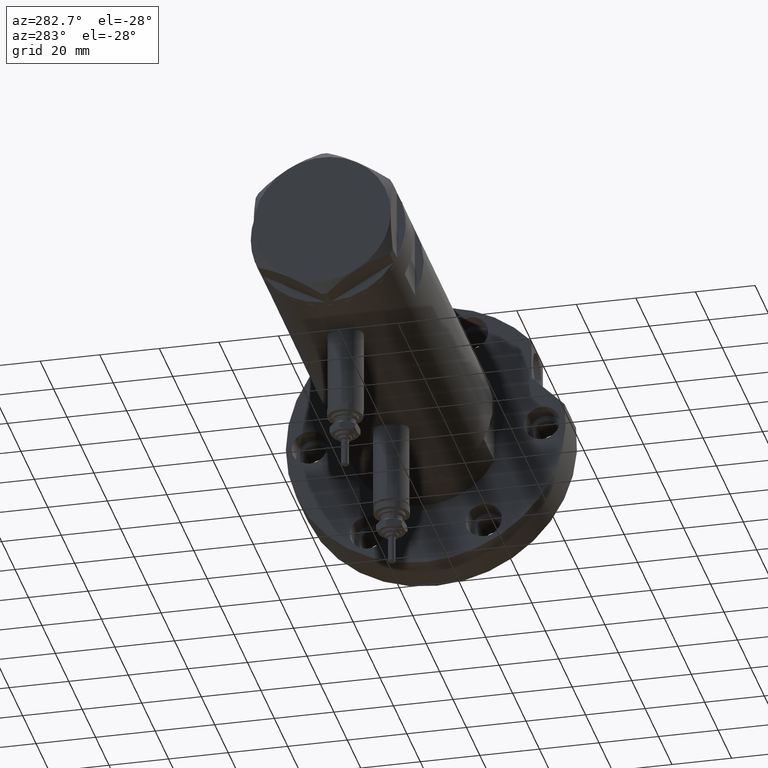
[diagram: clean part render]
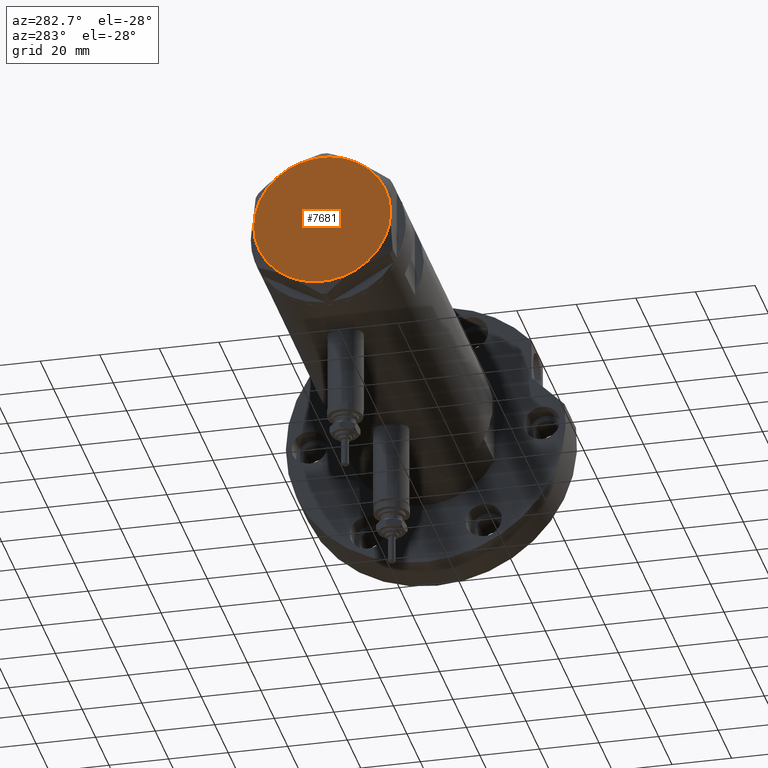
[diagram: same view with one face highlighted and labeled with its STEP entity id]
A machine part, auxiliary view. The second image highlights one B-rep face of the part: STEP entity #7681.
In plain terms, the highlighted planar face has unit normal (-1, -0, 0).
Its self-contained STEP definition (entity closure, byte-faithful):
#99 = PLANE ( 'NONE',  #2413 ) ;
#255 = DIRECTION ( 'NONE',  ( 0.000000000000000000, 0.000000000000000000, 1.000000000000000000 ) ) ;
#363 = ORIENTED_EDGE ( 'NONE', *, *, #4805, .T. ) ;
#397 = AXIS2_PLACEMENT_3D ( 'NONE', #408, #1809, #7106 ) ;
#408 = CARTESIAN_POINT ( 'NONE',  ( 0.000000000000000000, 0.000000000000000000, 9.000000000000000000 ) ) ;
#634 = CARTESIAN_POINT ( 'NONE',  ( 11.49999999999990408, 19.91858428704219364, 9.000000000000000000 ) ) ;
#673 = ORIENTED_EDGE ( 'NONE', *, *, #7452, .T. ) ;
#825 = CARTESIAN_POINT ( 'NONE',  ( 11.50000000000018296, -19.91858428704203732, 9.000000000000000000 ) ) ;
#984 = CIRCLE ( 'NONE', #7553, 23.00000000000004619 ) ;
#1064 = DIRECTION ( 'NONE',  ( 0.000000000000000000, 0.000000000000000000, 1.000000000000000000 ) ) ;
#1809 = DIRECTION ( 'NONE',  ( 0.000000000000000000, 0.000000000000000000, 1.000000000000000000 ) ) ;
#1866 = VERTEX_POINT ( 'NONE', #634 ) ;
#1915 = CARTESIAN_POINT ( 'NONE',  ( -11.50000000000004441, 19.91858428704211548, 9.000000000000000000 ) ) ;
#2011 = DIRECTION ( 'NONE',  ( 1.000000000000000000, 0.000000000000000000, 0.000000000000000000 ) ) ;
#2237 = DIRECTION ( 'NONE',  ( 0.000000000000000000, 0.000000000000000000, 1.000000000000000000 ) ) ;
#2413 = AXIS2_PLACEMENT_3D ( 'NONE', #5417, #2237, #7469 ) ;
#2426 = ORIENTED_EDGE ( 'NONE', *, *, #5539, .T. ) ;
#2569 = DIRECTION ( 'NONE',  ( 0.000000000000000000, 0.000000000000000000, 1.000000000000000000 ) ) ;
#2669 = DIRECTION ( 'NONE',  ( 1.000000000000000000, 0.000000000000000000, 0.000000000000000000 ) ) ;
#2844 = ORIENTED_EDGE ( 'NONE', *, *, #7383, .T. ) ;
#2847 = VERTEX_POINT ( 'NONE', #825 ) ;
#3120 = EDGE_CURVE ( 'NONE', #7013, #7667, #6358, .T. ) ;
#3552 = CARTESIAN_POINT ( 'NONE',  ( 0.000000000000000000, 0.000000000000000000, 9.000000000000000000 ) ) ;
#3722 = DIRECTION ( 'NONE',  ( 1.000000000000000000, 0.000000000000000000, 0.000000000000000000 ) ) ;
#3870 = DIRECTION ( 'NONE',  ( 1.000000000000000000, 0.000000000000000000, 0.000000000000000000 ) ) ;
#3939 = CARTESIAN_POINT ( 'NONE',  ( 0.000000000000000000, 0.000000000000000000, 9.000000000000000000 ) ) ;
#4287 = EDGE_CURVE ( 'NONE', #1866, #4879, #4408, .T. ) ;
#4408 = CIRCLE ( 'NONE', #5790, 23.00000000000004619 ) ;
#4420 = AXIS2_PLACEMENT_3D ( 'NONE', #7549, #255, #6539 ) ;
#4548 = CIRCLE ( 'NONE', #7081, 23.00000000000004619 ) ;
#4599 = CARTESIAN_POINT ( 'NONE',  ( 0.000000000000000000, 0.000000000000000000, 9.000000000000000000 ) ) ;
#4664 = AXIS2_PLACEMENT_3D ( 'NONE', #5029, #7199, #3870 ) ;
#4805 = EDGE_CURVE ( 'NONE', #6402, #1866, #4548, .T. ) ;
#4879 = VERTEX_POINT ( 'NONE', #1915 ) ;
#5029 = CARTESIAN_POINT ( 'NONE',  ( 0.000000000000000000, 0.000000000000000000, 9.000000000000000000 ) ) ;
#5082 = CARTESIAN_POINT ( 'NONE',  ( 22.99999999999995026, 2.373657066004705010E-13, 9.000000000000000000 ) ) ;
#5417 = CARTESIAN_POINT ( 'NONE',  ( 0.000000000000000000, 0.000000000000000000, 9.000000000000000000 ) ) ;
#5539 = EDGE_CURVE ( 'NONE', #7667, #2847, #7668, .T. ) ;
#5790 = AXIS2_PLACEMENT_3D ( 'NONE', #3939, #2569, #2011 ) ;
#5810 = EDGE_LOOP ( 'NONE', ( #673, #363, #7134, #2844, #8201, #2426 ) ) ;
#6358 = CIRCLE ( 'NONE', #4664, 23.00000000000004619 ) ;
#6402 = VERTEX_POINT ( 'NONE', #5082 ) ;
#6539 = DIRECTION ( 'NONE',  ( 1.000000000000000000, 0.000000000000000000, 0.000000000000000000 ) ) ;
#6687 = DIRECTION ( 'NONE',  ( 0.000000000000000000, 0.000000000000000000, 1.000000000000000000 ) ) ;
#6868 = FACE_OUTER_BOUND ( 'NONE', #5810, .T. ) ;
#7013 = VERTEX_POINT ( 'NONE', #8544 ) ;
#7081 = AXIS2_PLACEMENT_3D ( 'NONE', #3552, #1064, #3722 ) ;
#7106 = DIRECTION ( 'NONE',  ( 1.000000000000000000, 0.000000000000000000, 0.000000000000000000 ) ) ;
#7134 = ORIENTED_EDGE ( 'NONE', *, *, #4287, .T. ) ;
#7199 = DIRECTION ( 'NONE',  ( 0.000000000000000000, 0.000000000000000000, 1.000000000000000000 ) ) ;
#7383 = EDGE_CURVE ( 'NONE', #4879, #7013, #7966, .T. ) ;
#7452 = EDGE_CURVE ( 'NONE', #2847, #6402, #984, .T. ) ;
#7469 = DIRECTION ( 'NONE',  ( 1.000000000000000000, 0.000000000000000000, -0.000000000000000000 ) ) ;
#7549 = CARTESIAN_POINT ( 'NONE',  ( 0.000000000000000000, 0.000000000000000000, 9.000000000000000000 ) ) ;
#7553 = AXIS2_PLACEMENT_3D ( 'NONE', #4599, #6687, #2669 ) ;
#7667 = VERTEX_POINT ( 'NONE', #8213 ) ;
#7668 = CIRCLE ( 'NONE', #4420, 23.00000000000004619 ) ;
#7681 = ADVANCED_FACE ( 'NONE', ( #6868 ), #99, .T. ) ;
#7966 = CIRCLE ( 'NONE', #397, 23.00000000000004619 ) ;
#8201 = ORIENTED_EDGE ( 'NONE', *, *, #3120, .T. ) ;
#8213 = CARTESIAN_POINT ( 'NONE',  ( -11.49999999999990585, -19.91858428704219364, 9.000000000000000000 ) ) ;
#8544 = CARTESIAN_POINT ( 'NONE',  ( -23.00000000000004619, -8.112498833180673323E-14, 9.000000000000000000 ) ) ;